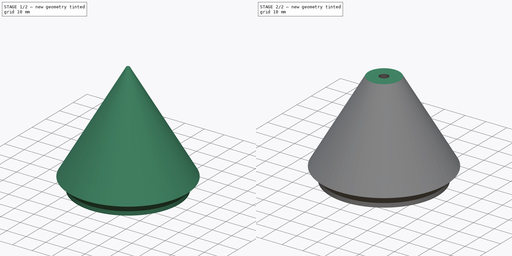
[diagram: build sequence overview — one tinted view per stage of 2, left to right]
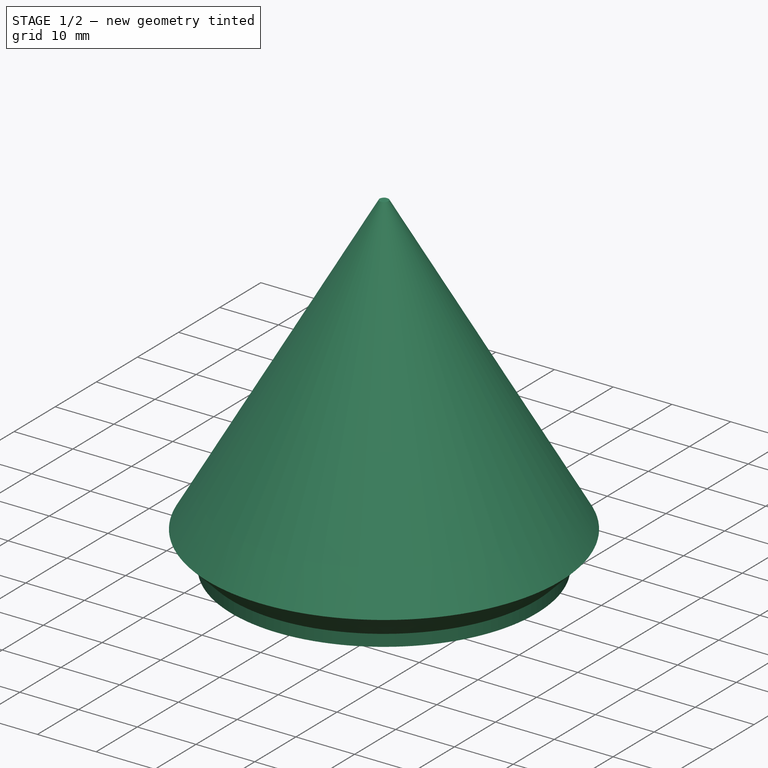
[diagram: stage 1 of 2 — iso view after this stage's code; geometry added in this stage tinted green]
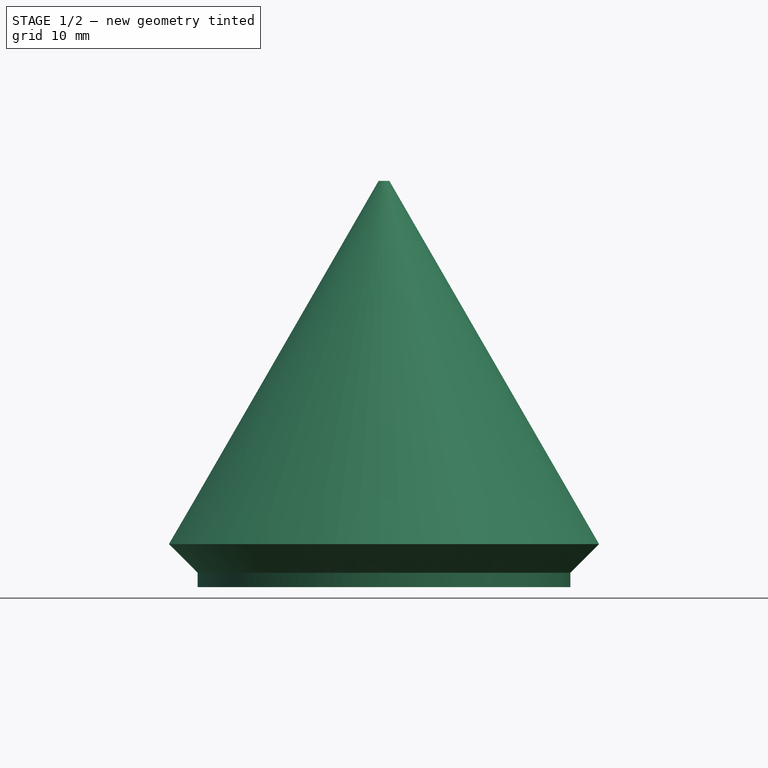
[diagram: stage 1 of 2 — front view after this stage's code; geometry added in this stage tinted green]
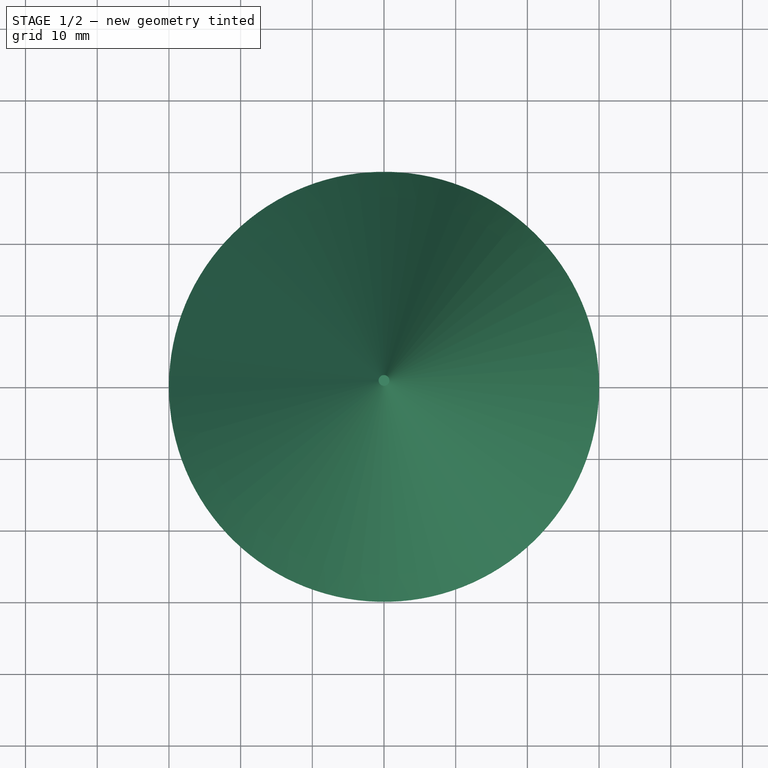
[diagram: stage 1 of 2 — top view after this stage's code; geometry added in this stage tinted green]
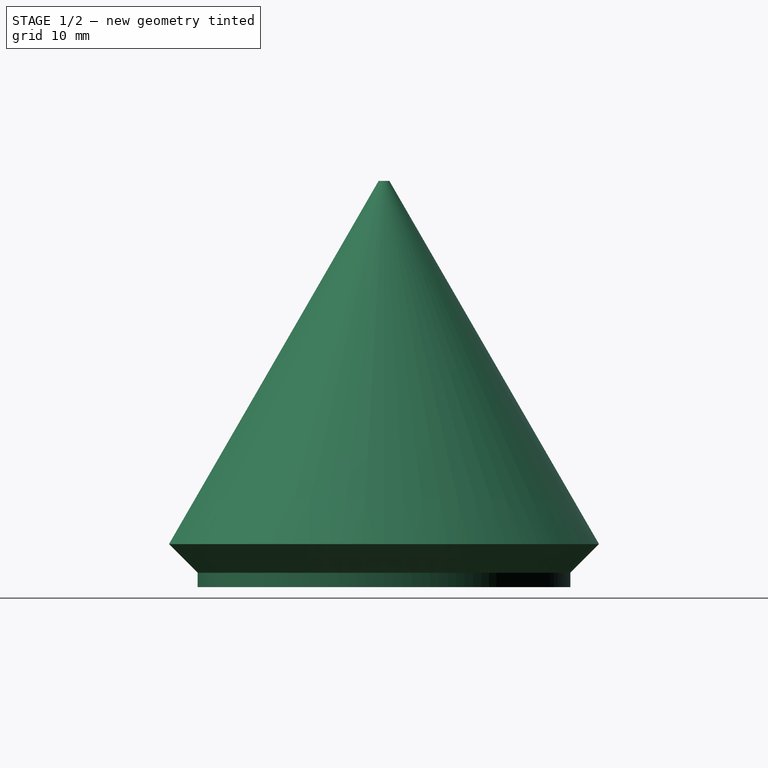
[diagram: stage 1 of 2 — right view after this stage's code; geometry added in this stage tinted green]
FCSTD DOCUMENT  (FreeCAD 0.20R29603 (Git))
Label: scan-cone
License: All rights reserved
LicenseURL: http://en.wikipedia.org/wiki/All_rights_reserved
objects: PartDesign::Plane×2, Sketcher::SketchObject×2, App::TextDocument×1, Spreadsheet::Sheet×1, PartDesign::Revolution×1, PartDesign::Pocket×1, PartDesign::Body×1
note: 9 computed .brp shape members not serialized (recipe doc carries the construction recipe); baked Part::Feature solids carry a one-line shape summary decoded from their .brp

FEATURE [App::TextDocument] Text_document  label="Text document"
FEATURE [Spreadsheet::Sheet] Spreadsheet
FEATURE [PartDesign::Plane] DatumPlane  label="ConeProfileXZDatumPlane"
  Length = 72.9615
  MapMode = 5
  Placement = pos=(0,0,0) rot=(1,0,0;1.5708rad)
  ResizeMode = 0
  Support = -> [XZ_Plane]
  Width = 82.9615
FEATURE [Sketcher::SketchObject] Sketch  label="ConeProfileSketch"
  FullyConstrained = true
  MapMode = 5
  Placement = pos=(0,0,0) rot=(1,0,0;1.5708rad)
  Support = -> [DatumPlane]
  sketch-geometry (16):
    g0: LineSegment StartX=30 StartY=6 StartZ=0 EndX=0.75 EndY=56.6625 EndZ=0
    g1: LineSegment StartX=0.75 StartY=56.6625 StartZ=0 EndX=-1.7e-15 EndY=56.6625 EndZ=0
    g2: LineSegment StartX=26 StartY=0 StartZ=0 EndX=30 EndY=0 EndZ=0
    g3: LineSegment StartX=30 StartY=6 StartZ=0 EndX=30 EndY=0 EndZ=0
    g4: LineSegment StartX=-1.7e-15 StartY=6 StartZ=0 EndX=-1.7e-15 EndY=0 EndZ=0
    g5: LineSegment StartX=-1.7e-15 StartY=6 StartZ=0 EndX=26 EndY=6 EndZ=0
    g6: LineSegment StartX=-1.7e-15 StartY=56.6625 StartZ=0 EndX=-1.7e-15 EndY=48.6625 EndZ=0
    g7: LineSegment StartX=-1.7e-15 StartY=48.6625 StartZ=0 EndX=-1.7e-15 EndY=6 EndZ=0
    g8: LineSegment StartX=-1.7e-15 StartY=48.6625 StartZ=0 EndX=22 EndY=10.5574 EndZ=0
    g9: LineSegment StartX=22 StartY=10.5574 StartZ=0 EndX=22 EndY=0 EndZ=0
    g10: LineSegment StartX=-1.7e-15 StartY=0 StartZ=0 EndX=22 EndY=0 EndZ=0
    g11: LineSegment StartX=22 StartY=0 StartZ=0 EndX=26 EndY=0 EndZ=0
    g12: LineSegment StartX=26 StartY=0 StartZ=0 EndX=26 EndY=2 EndZ=0
    g13: LineSegment StartX=26 StartY=2 StartZ=0 EndX=26 EndY=6 EndZ=0
    g14: LineSegment StartX=26 StartY=6 StartZ=0 EndX=30 EndY=6 EndZ=0
    g15: LineSegment StartX=26 StartY=2 StartZ=0 EndX=30 EndY=6 EndZ=0
  constraints (44):
    c: Coincident(g11,g12)
    c: Coincident(g13,g14)
    c: Coincident(g0,g1)
    c: Horizontal(g1)
    c: Coincident(g1,g6)
    c: Coincident(g4,g10)
    c: DistanceX(g10,g11) = 26
    c: Coincident(g2,g11)
    c: Horizontal(g2)
    c: Coincident(g3,g2)
    c: Vertical(g3)
    c: DistanceY(g12,g13) = 6
    c: DistanceX(g14,g0) = 4
    c: DistanceX(g-1,g2) = 30
    c: DistanceX(g1,g1) = 0.75
    c: Coincident(g7,g4)
    c: Vertical(g4)
    c: Coincident(g5,g7)
    c: Coincident(g5,g13)
    c: Horizontal(g5)
    c: DistanceY(g-1,g7) = 6
    c: Coincident(g6,g7)
    c: Vertical(g6)
    c: Vertical(g7)
    c: Coincident(g8,g6)
    c: Coincident(g9,g8)
    c: Vertical(g9)
    c: Coincident(g10,g11)
    c: Horizontal(g10)
    c: Horizontal(g11)
    c: Coincident(g9,g10)
    c: DistanceX(g11,g11) = 4
    c: Parallel(g8,g0)
    c: Coincident(g12,g13)
    c: Vertical(g12)
    c: Vertical(g13)
    c: Horizontal(g14)
    c: Coincident(g15,g12)
    c: Coincident(g15,g14)
    c: Coincident(g14,g0)
    c: Coincident(g0,g3)
    c: Angle(g14,g15) = 0.785398
    c: Angle(g0,g14) = 1.0472
    c: DistanceY(g6,g6) = 8
FEATURE [PartDesign::Revolution] Revolution  label="ConeRevolution"
  Angle = 360
  Axis = (0,-2e-16,1)
  Base = (0,0,0)
  Placement = pos=(0,0,0) rot=(1,0,0;1.5708rad)
  Profile = -> Sketch
  ReferenceAxis = -> Sketch [V_Axis]
  Reversed = true
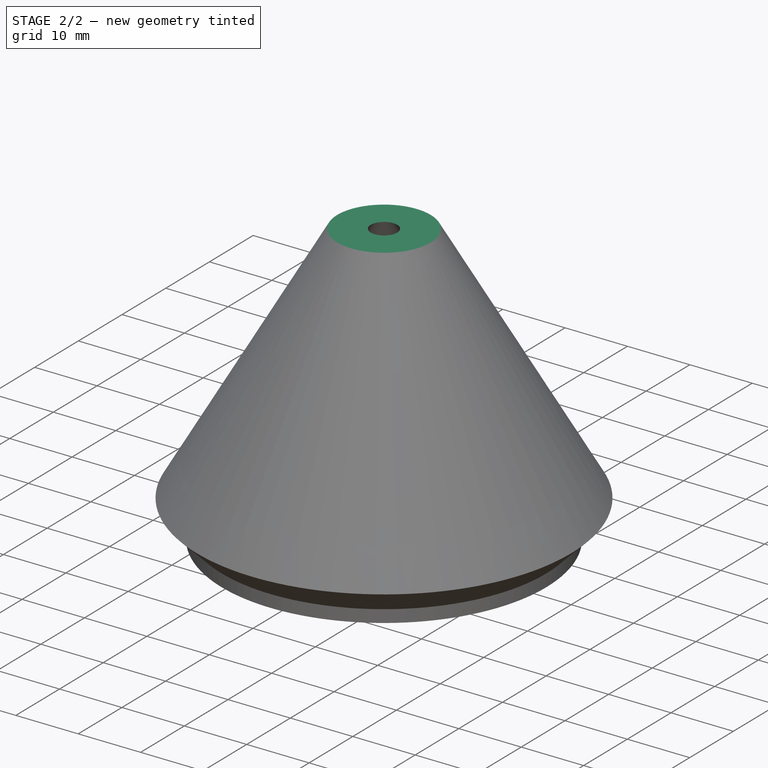
[diagram: stage 2 of 2 — iso view after this stage's code; geometry added in this stage tinted green]
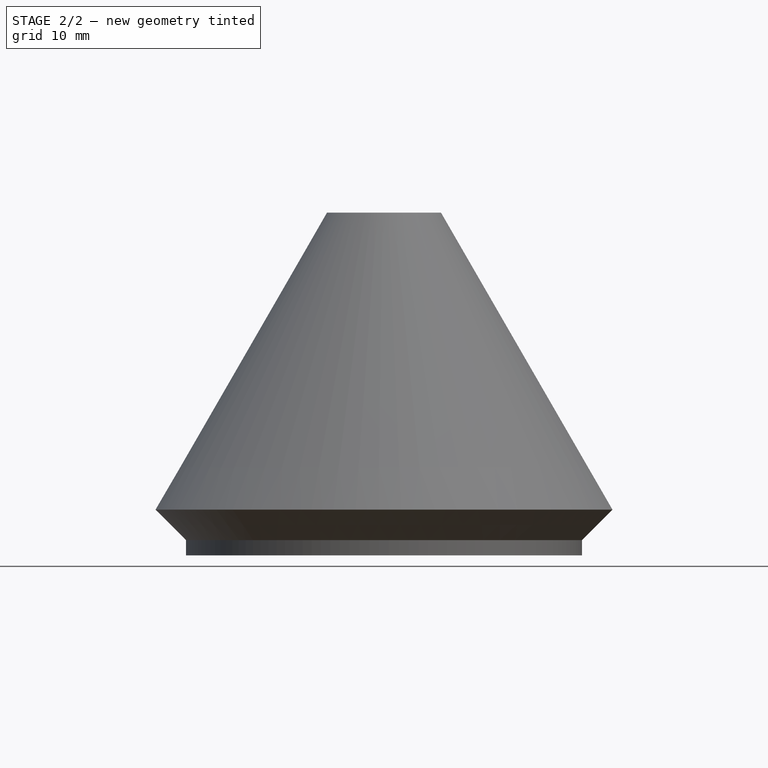
[diagram: stage 2 of 2 — front view after this stage's code; geometry added in this stage tinted green]
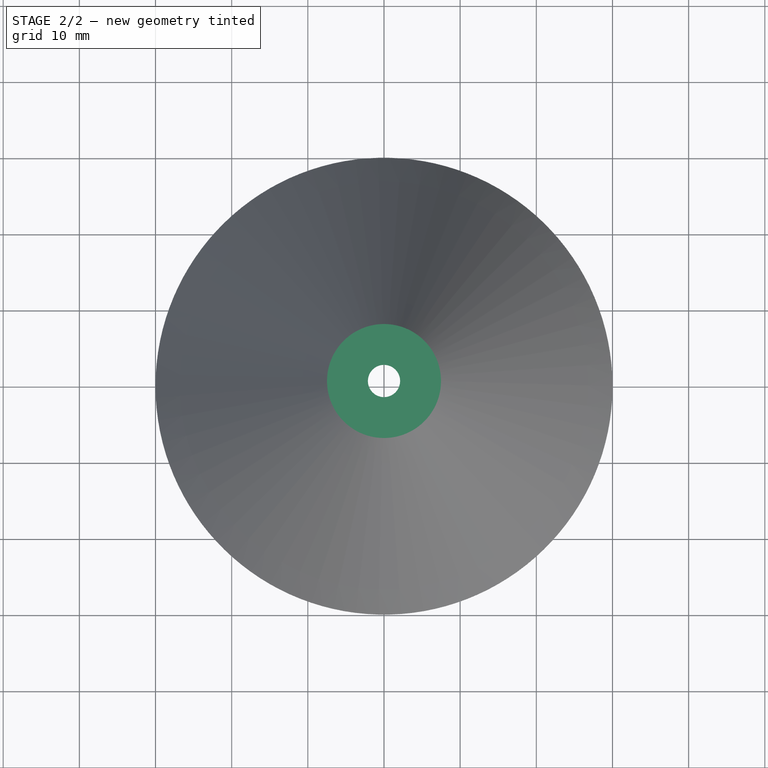
[diagram: stage 2 of 2 — top view after this stage's code; geometry added in this stage tinted green]
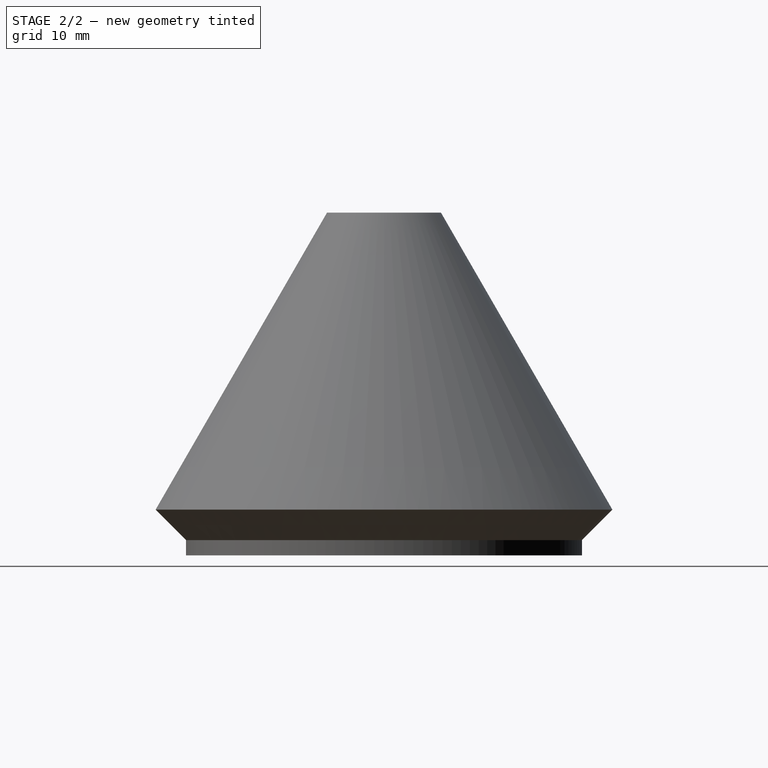
[diagram: stage 2 of 2 — right view after this stage's code; geometry added in this stage tinted green]
FEATURE [PartDesign::Plane] DatumPlane001
  AttachmentOffset = pos=(0,0,45) rot=(0,0,1;0rad)
  Length = 72
  MapMode = 5
  Placement = pos=(0,0,45) rot=(0,0,1;0rad)
  ResizeMode = 0
  Support = -> [XY_Plane]
  Width = 72
FEATURE [Sketcher::SketchObject] Sketch001
  FullyConstrained = false
  MapMode = 5
  Placement = pos=(0,0,45) rot=(0,0,1;0rad)
  Support = -> [DatumPlane001]
  sketch-geometry (1):
    g0: Circle CenterX=0 CenterY=0 CenterZ=0 NormalX=0 NormalY=0 NormalZ=1 AngleXU=0 Radius=15.2612
  constraints (1):
    c: Coincident(g0,g-1)
FEATURE [PartDesign::Pocket] Pocket
  BaseFeature = -> Revolution
  Direction = (0,0,-1)
  Length = 14
  Length2 = 5
  Placement = pos=(0,0,0) rot=(1,0,0;1.5708rad)
  Profile = -> Sketch001
  ReferenceAxis = -> Sketch001 [N_Axis]
  Reversed = true
  Type = 0
FEATURE [PartDesign::Body] Body
  Group = -> [DatumPlane,Sketch,Revolution,DatumPlane001,Sketch001,Pocket]
  Origin = -> Origin
  Tip = -> Pocket
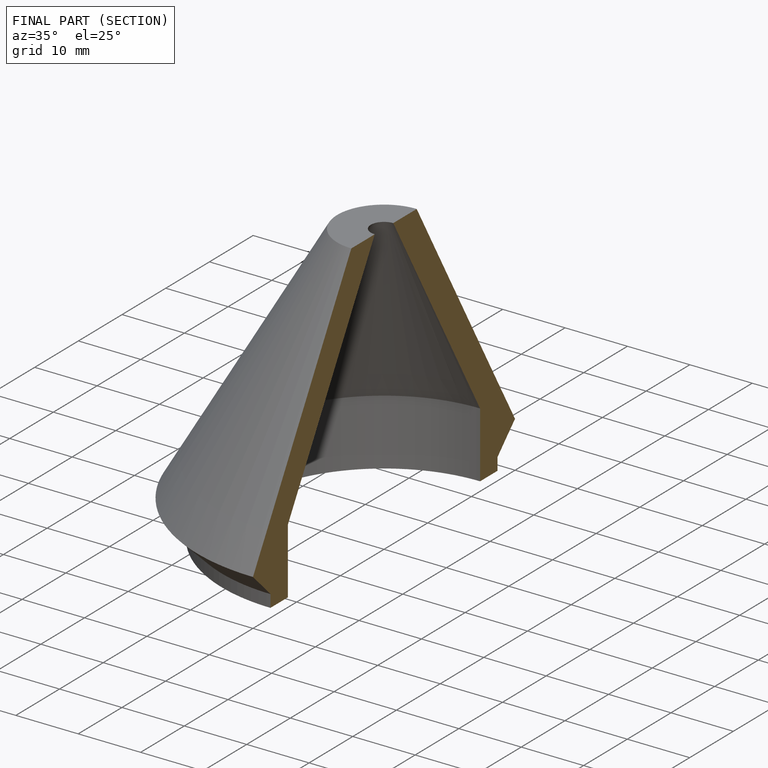
[diagram: finished part — half-section view (interior)]
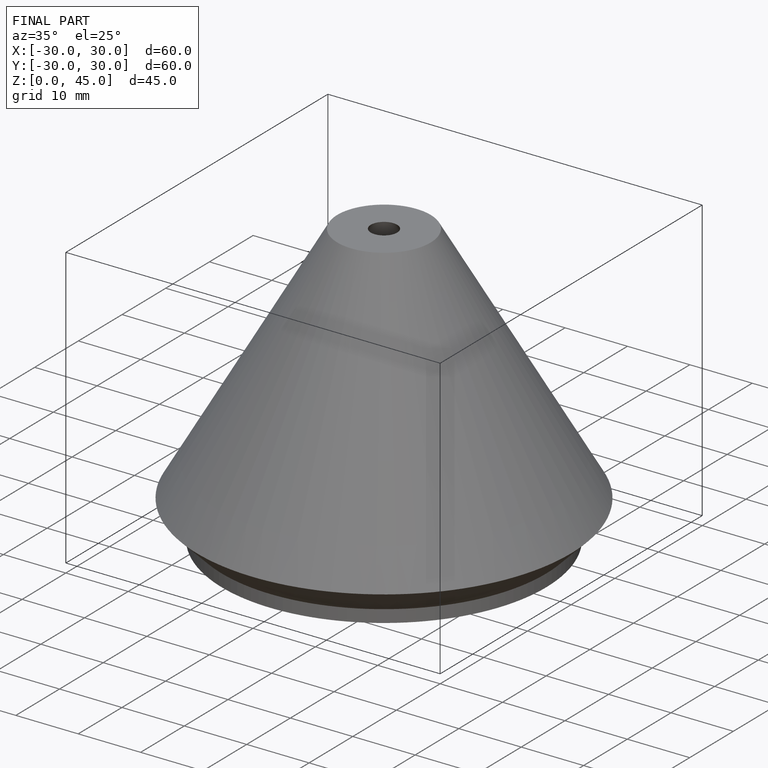
[diagram: finished part — iso view with bounding-box wireframe]
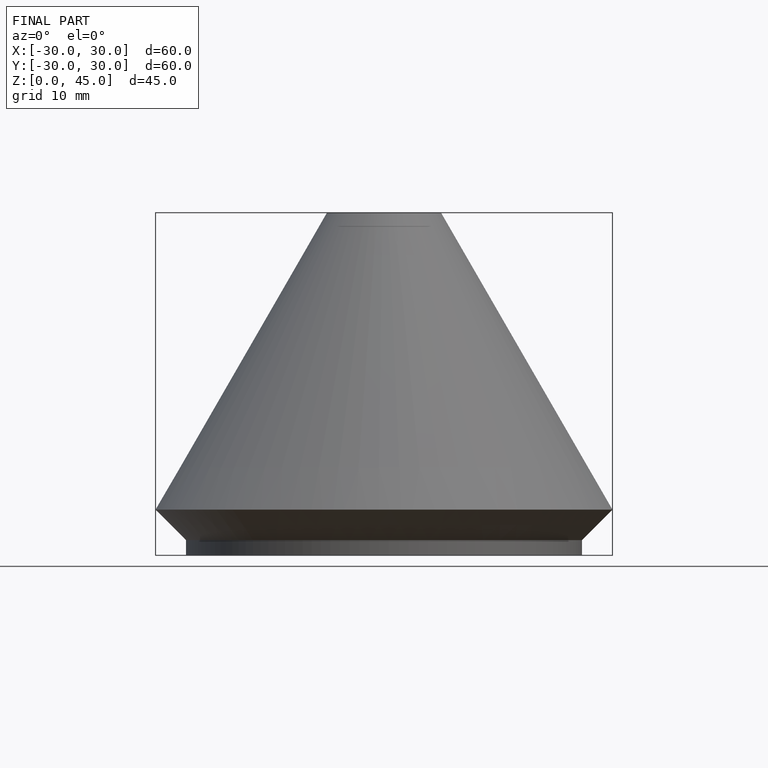
[diagram: finished part — front view with bounding-box wireframe]
